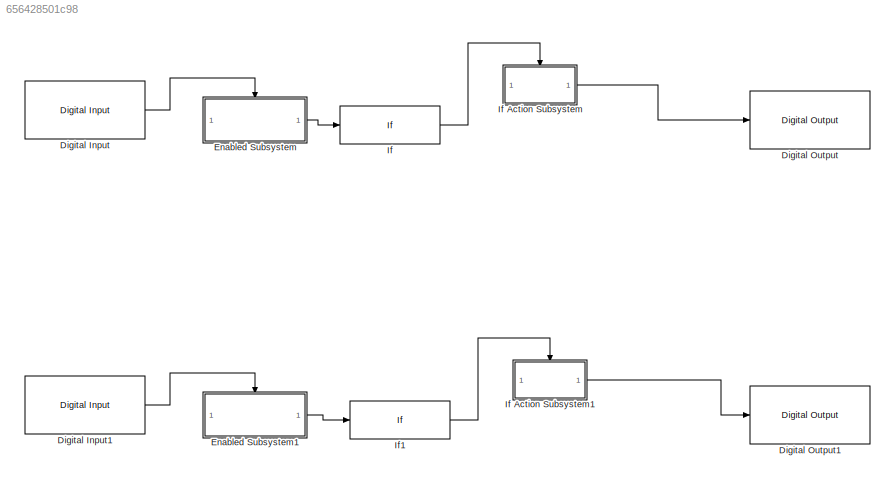
MODEL slx_656428501c98
KIND model
CONFIG AbsTol = auto
CONFIG EnableMultiTasking = on
CONFIG FixedStep = 1e-3
CONFIG MaxStep = auto
CONFIG MinStep = auto
CONFIG RelTol = 1e-3
CONFIG SampleTimeConstraint = Unconstrained
CONFIG SolverName = FixedStepDiscrete
CONFIG StartTime = 0.0
CONFIG StopTime = 10.0
BLOCK [Reference] Digital Input  REF=arduinolib/Digital Input
  SourceBlock = arduinolib/Digital Input
  SourceType = Arduino Digital Input
BLOCK [Reference] Digital Input1  REF=arduinolib/Digital Input
  SourceBlock = arduinolib/Digital Input
  SourceType = Arduino Digital Input
BLOCK [Reference] Digital Output  REF=arduinolib/Digital Output
  SourceBlock = arduinolib/Digital Output
  SourceType = Arduino Digital Output
BLOCK [Reference] Digital Output1  REF=arduinolib/Digital Output
  SourceBlock = arduinolib/Digital Output
  SourceType = Arduino Digital Output
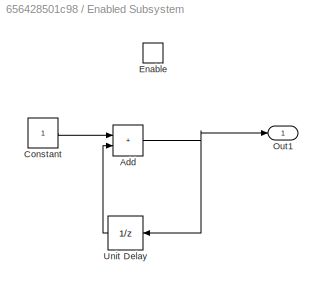
BLOCK [SubSystem] Enabled Subsystem
  TreatAsAtomicUnit = on
BLOCK [Sum] Enabled Subsystem/Add
  IconShape = rectangular
BLOCK [Constant] Enabled Subsystem/Constant
BLOCK [EnablePort] Enabled Subsystem/Enable
  StatesWhenEnabling = reset
BLOCK [Outport] Enabled Subsystem/Out1
BLOCK [UnitDelay] Enabled Subsystem/Unit Delay
  HasFrameUpgradeWarning = on
  SampleTime = -1
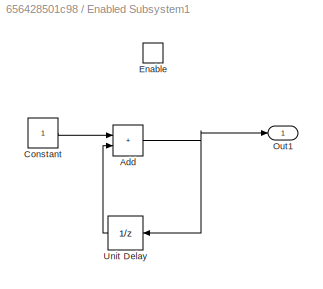
BLOCK [SubSystem] Enabled Subsystem1
  TreatAsAtomicUnit = on
BLOCK [Sum] Enabled Subsystem1/Add
  IconShape = rectangular
BLOCK [Constant] Enabled Subsystem1/Constant
BLOCK [EnablePort] Enabled Subsystem1/Enable
  StatesWhenEnabling = reset
BLOCK [Outport] Enabled Subsystem1/Out1
BLOCK [UnitDelay] Enabled Subsystem1/Unit Delay
  HasFrameUpgradeWarning = on
  SampleTime = -1
BLOCK [If] If
  IfExpression = u1 == 10
  ShowElse = off
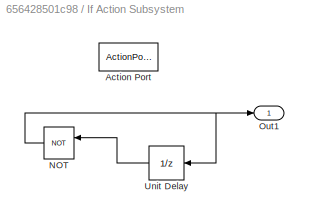
BLOCK [SubSystem] If Action Subsystem
  TreatAsAtomicUnit = on
BLOCK [ActionPort] If Action Subsystem/Action Port
  ActionPortLabel = if(u1 == 10)
BLOCK [Logic] If Action Subsystem/NOT
  AllPortsSameDT = off
  IconShape = distinctive
  Operator = NOT
  OutDataTypeStr = boolean
BLOCK [Outport] If Action Subsystem/Out1
BLOCK [UnitDelay] If Action Subsystem/Unit Delay
  HasFrameUpgradeWarning = on
  SampleTime = -1
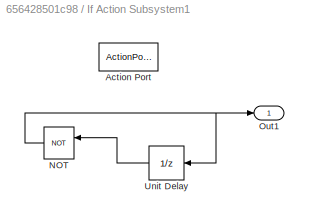
BLOCK [SubSystem] If Action Subsystem1
  TreatAsAtomicUnit = on
BLOCK [ActionPort] If Action Subsystem1/Action Port
  ActionPortLabel = if(u1 == 10)
BLOCK [Logic] If Action Subsystem1/NOT
  AllPortsSameDT = off
  IconShape = distinctive
  Operator = NOT
  OutDataTypeStr = boolean
BLOCK [Outport] If Action Subsystem1/Out1
BLOCK [UnitDelay] If Action Subsystem1/Unit Delay
  HasFrameUpgradeWarning = on
  SampleTime = -1
BLOCK [If] If1
  IfExpression = u1 == 10
  ShowElse = off
LINE Digital Input1:1 -> Enabled Subsystem1:enable
LINE Digital Input:1 -> Enabled Subsystem:enable
NET Enabled Subsystem/Add:1 -> Enabled Subsystem/Out1:1, Enabled Subsystem/Unit Delay:1
LINE Enabled Subsystem/Constant:1 -> Enabled Subsystem/Add:1
LINE Enabled Subsystem/Unit Delay:1 -> Enabled Subsystem/Add:2
NET Enabled Subsystem1/Add:1 -> Enabled Subsystem1/Out1:1, Enabled Subsystem1/Unit Delay:1
LINE Enabled Subsystem1/Constant:1 -> Enabled Subsystem1/Add:1
LINE Enabled Subsystem1/Unit Delay:1 -> Enabled Subsystem1/Add:2
LINE Enabled Subsystem1:1 -> If1:1
LINE Enabled Subsystem:1 -> If:1
NET If Action Subsystem/NOT:1 -> If Action Subsystem/Out1:1, If Action Subsystem/Unit Delay:1
LINE If Action Subsystem/Unit Delay:1 -> If Action Subsystem/NOT:1
NET If Action Subsystem1/NOT:1 -> If Action Subsystem1/Out1:1, If Action Subsystem1/Unit Delay:1
LINE If Action Subsystem1/Unit Delay:1 -> If Action Subsystem1/NOT:1
LINE If Action Subsystem1:1 -> Digital Output1:1
LINE If Action Subsystem:1 -> Digital Output:1
LINE If1:1 -> If Action Subsystem1:ifaction
LINE If:1 -> If Action Subsystem:ifaction
note: NET lines group one-source signal fan-out (src -> all destinations, sorted); 1:1 wires keep LINE
